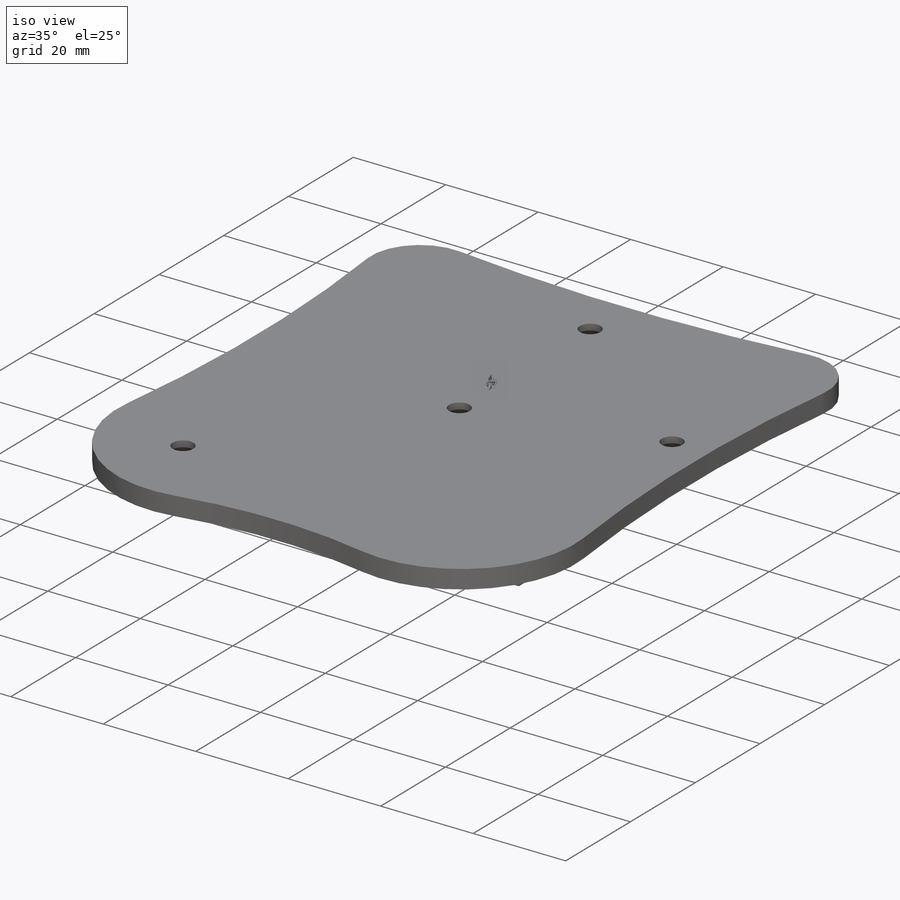
[diagram: iso view]
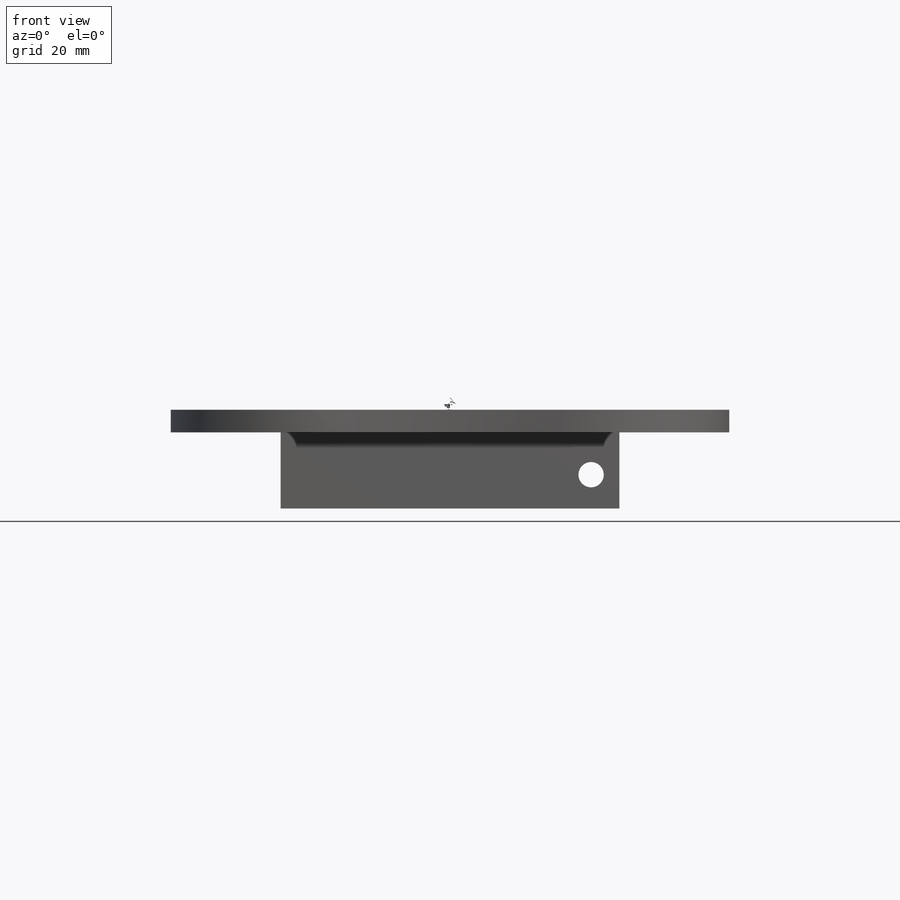
[diagram: front view]
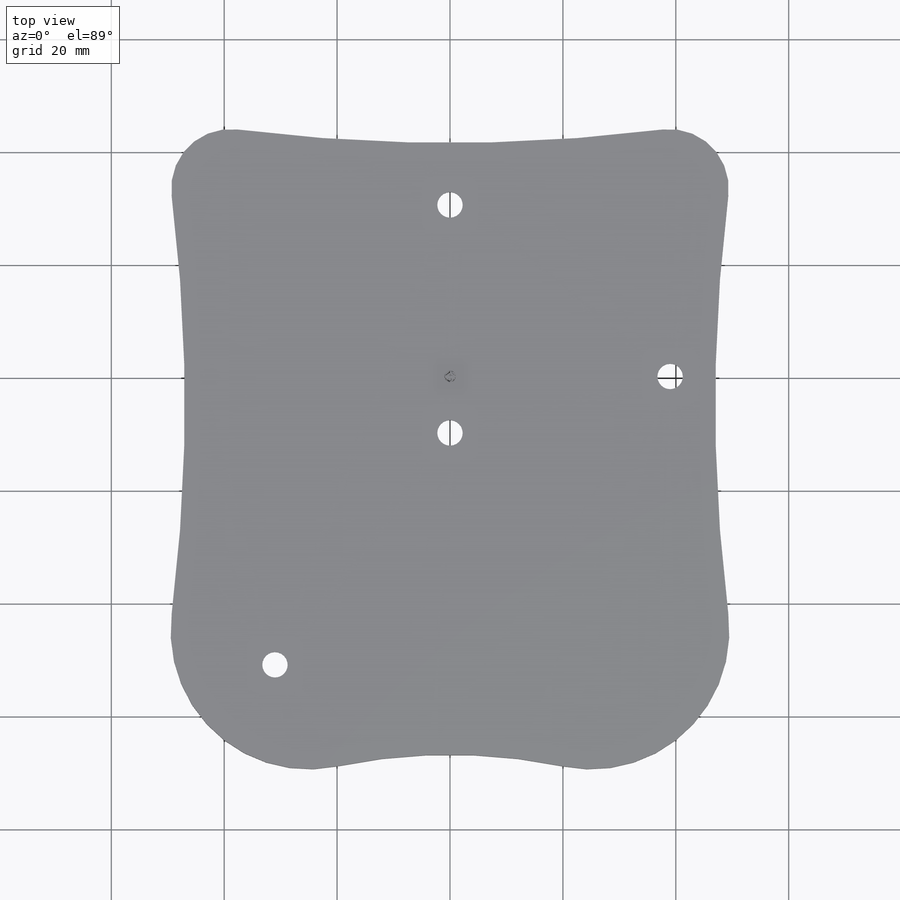
[diagram: top view]
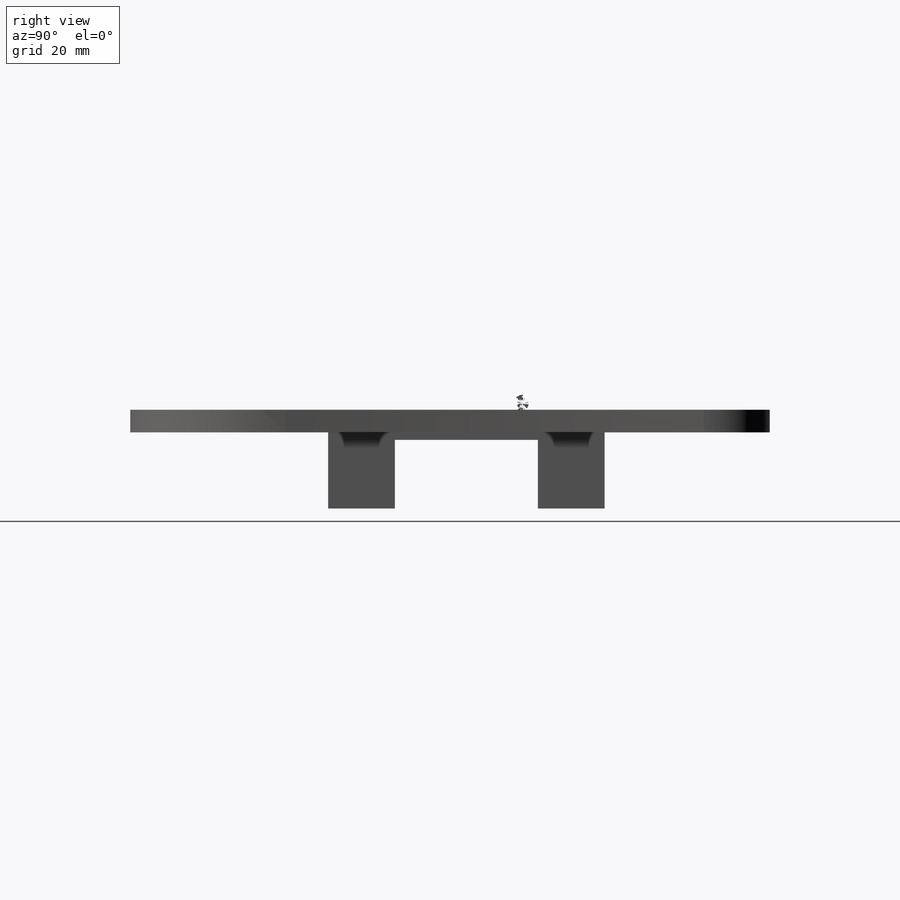
[diagram: right view]
SOLIDWORKS PART (.sldprt)
format: sldprt  version: not decoded by parser v0  size: 964,608 bytes
history: native  units: mm
features: sketch x5, extrude x2, material x1, hole x1, move_body x1, boolean_combine x1, cut_extrude x1 + 2 further entries (+23 scaffold rows collapsed; 10 parser-record rows omitted)
feature tree (47):
  scaffold x23  (default folders/planes/origin — collapsed)
  material  "ABS"
  "a3_o"
  parser-record x10  (decoder bookkeeping rows leaked as tree rows — omitted from the tree; the rows remain in map.json)
  sketch  "Sketch1"  dims[D1=2.0mm]
  extrude  "Main Body"  Depth=4mm
  hole  "CSK for #8 Flat Head Socket Cap Screw1"  Diameter=4.4958mm Depth=14.3mm
  sketch  "Sketch4"
  sketch  "Sketch3"  dims[hole-wizard template sketch: 55 standard entries collapsed; hole parameters kept: c17.Thru Hole Depth=14.3mm c17.Near C'Sink Dia.=9.1186mm c17.D4=~3.666174mm c17.Near C'Sink Angle=82.0deg]
  sketch  "Sketch2"  dims[c1.D1=49.0mm c1.D2=60.0mm c2.D1=49.0mm c2.D2=60.0mm]
  extrude  "Dovetail Footprint"  Depth=0.1mm
  "dovetail_female"
  move_body  "Body-Move/Copy2"
  boolean_combine  "Combine1"
  sketch  "Sketch5"
  cut_extrude  "Clearance Extension - Bolt"  [1 undecoded]
decode coverage: 6 of 11 modeling features carry decoded parameters; 2 rows unclassified (native names shown)
note: ~ marks probable driven/reference dimensions
note: 1 parameter value undecoded
note: suppression state not decoded; provenance and decode notes live in map.json
